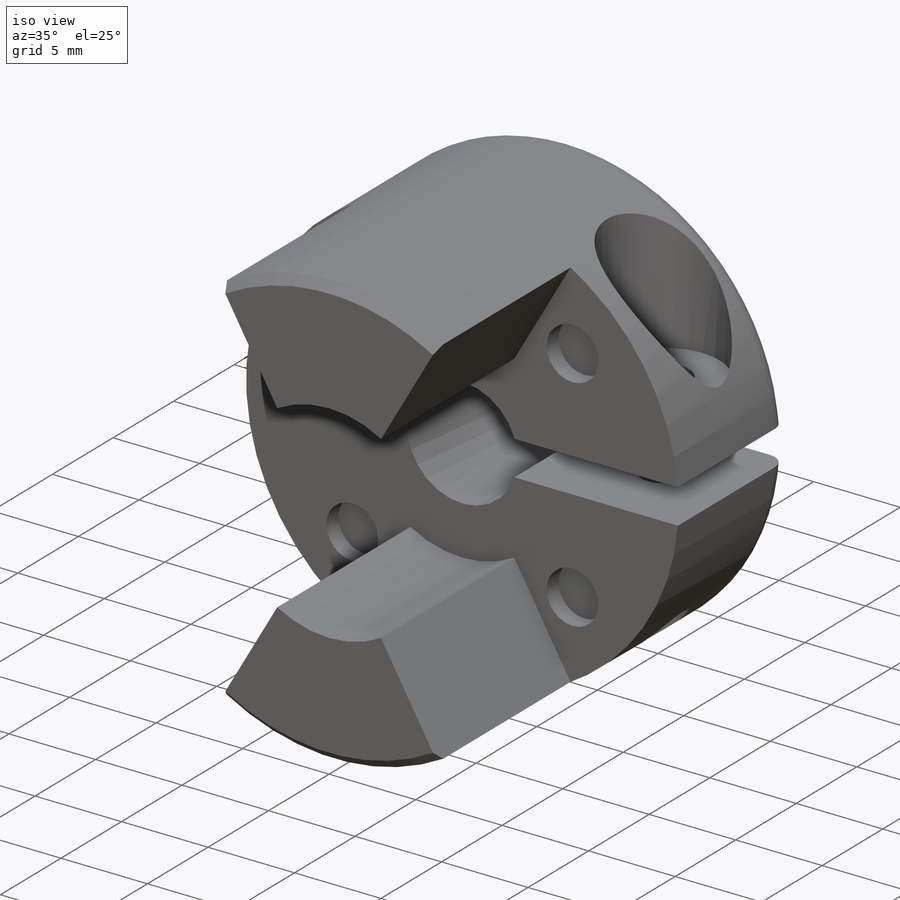
[diagram: iso view]
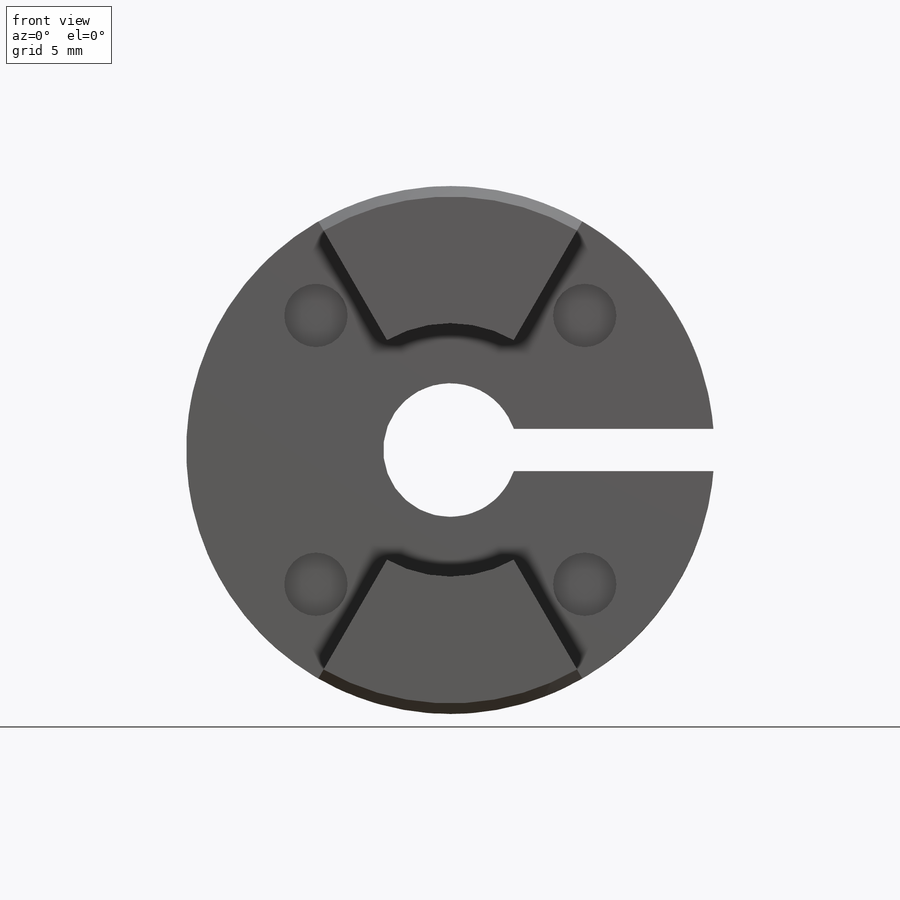
[diagram: front view]
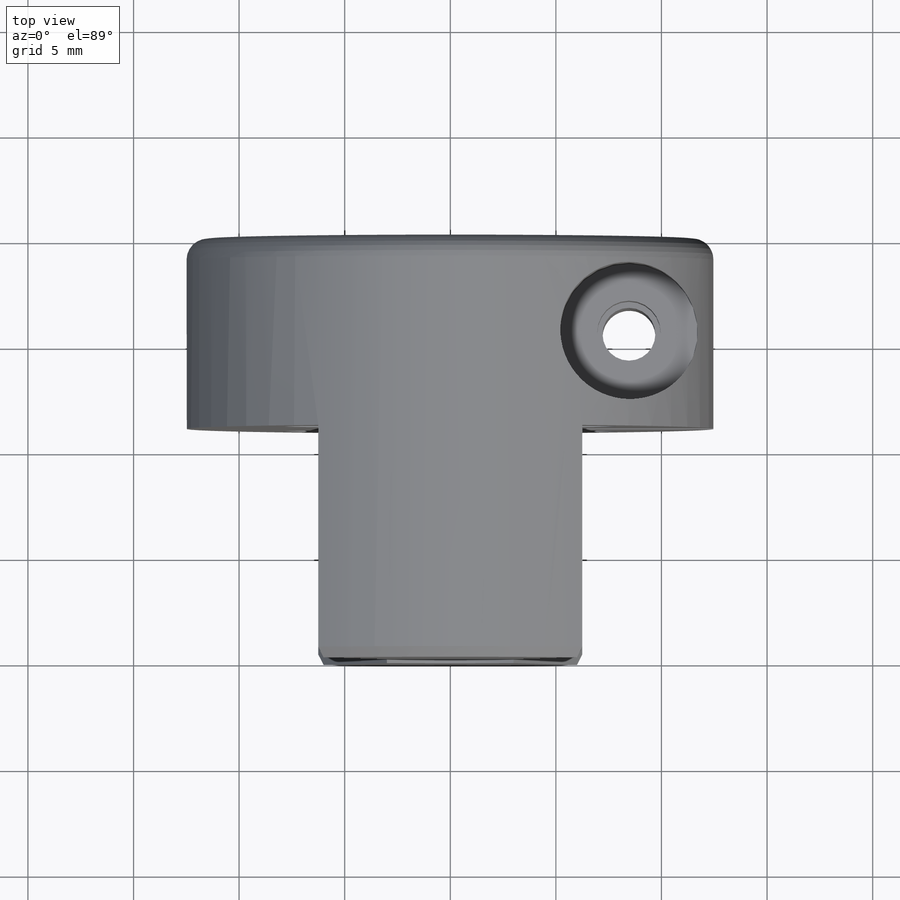
[diagram: top view]
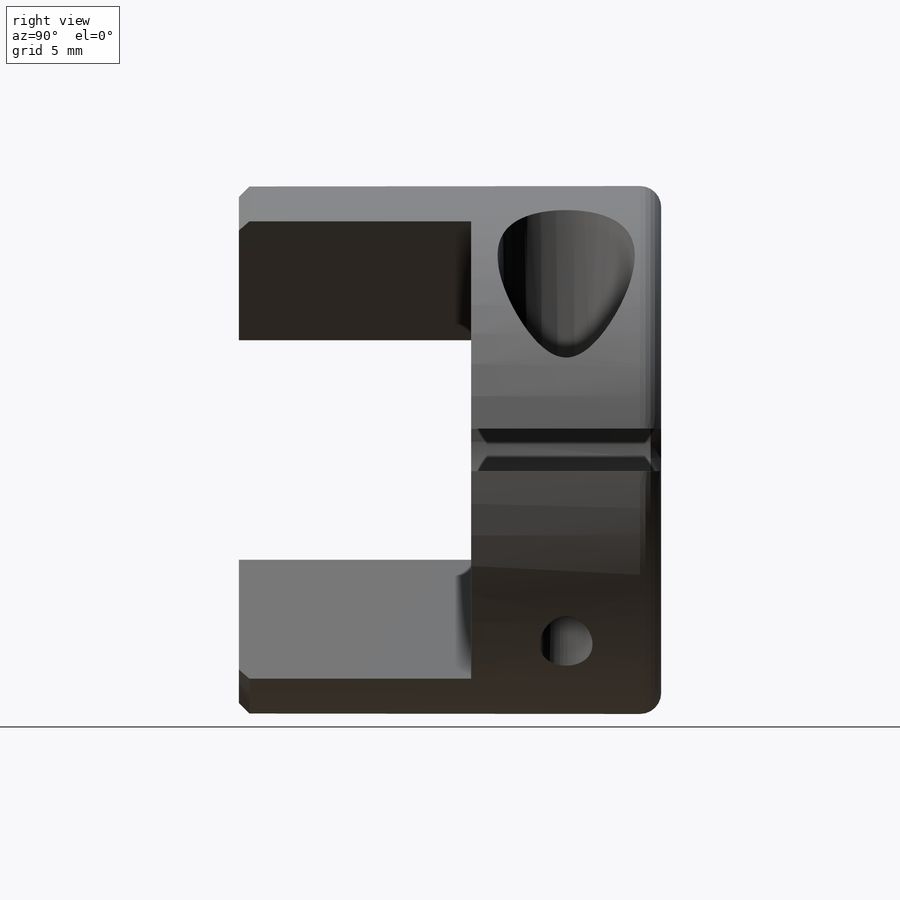
[diagram: right view]
SOLIDWORKS PART (.sldprt)
format: sldprt  version: not decoded by parser v0  size: 364,032 bytes
history: native  units: mm
features: sketch x10, cut_extrude x7, plane x3, material x1, extrude x1, mirror x1, hole x1, thread x1, fillet x1, chamfer x1, pattern_circular x1 (+9 scaffold rows collapsed)
feature tree (37):
  scaffold x9  (default folders/planes/origin — collapsed)
  material  "Liga 6061"
  plane  "Plano frontal"
  plane  "Plano superior"
  plane  "Plano direito"
  sketch  "Esboço1"  dims[D1=25.0mm]
  extrude  "Ressalto-extrusão1"  Depth=20mm
  sketch  "Esboço2"  dims[c1.D4=2.0mm c1.D5=22.0mm c1.D6=2.0mm c1.D1=~16.323264mm c2.D1=120.0deg c2.D2=~21.376062mm c3.D2=60.0deg c3.D3=~16.323264mm c4.D3=120.0deg c4.D4=14.4794mm c5.D4=60.0deg c6.D4=~16.323264mm c7.D4=60.0deg c7.D1=~26.119925mm c8.D1=120.0deg c8.D2=~34.953587mm c9.D2=60.0deg c9.D3=~30.836519mm c10.D3=120.0deg c10.D4=45.0mm c10.D6=~19.033423mm c11.D6=60.0deg c11.D5=12.5mm c12.D5=30.0deg c12.D6=~9.114651mm c13.D6=60.0deg c13.D1=~7.383022mm c14.D1=~100.264449deg c15.D1=~9.386832mm c16.D1=120.0deg c16.D2=12.5mm c17.D2=30.0deg]
  cut_extrude  "Corte-extrusão3"  Depth=11mm
  sketch  "Esboço3"  dims[D1=6.35mm]
  cut_extrude  "Corte-extrusão4"  [1 undecoded]
  mirror  "Espelhar1"
  sketch  "Esboço6"  dims[D1=2.0mm D2=12.0mm D3=7.0mm]
  cut_extrude  "Corte-extrusão5"  [1 undecoded]
  sketch  "Esboço7"  dims[D1=6.5mm D2=4.0mm]
  cut_extrude  "Corte-extrusão6"  Depth=3mm
  hole  "Furo roscado de M3x0.51"  Diameter=2.5mm Depth=16.5mm
  sketch  "Esboço9"
  sketch  "Esboço8"  dims[hole-wizard template sketch: 60 standard entries collapsed; hole parameters kept: c18.Thru Tap Drill Depth=16.5mm]
  thread  "Rosca de furo2"  Diameter=3mm  [1 undecoded]
  fillet  "Filete1"  Radius=1mm
  sketch  "Esboço10"  dims[c1.D1=3.0mm c1.D2=9.0mm c1.D3=9.0mm c2.D3=45.0deg c2.D4=~6.15765mm c3.D4=120.0deg c3.D5=~7.794229mm c4.D5=60.0deg]
  cut_extrude  "Corte-extrusão7"  Depth=1mm
  chamfer  "Chanfro1"  Distance=0.5mm Angle=45deg
  sketch  "Esboço11"  dims[D1=3.0mm]
  cut_extrude  "Corte-extrusão8"  [1 undecoded]
  sketch  "Esboço12"  dims[D1=12.0mm]
  cut_extrude  "Corte-extrusão9"  [1 undecoded]
  pattern_circular  "PadrãoCircular1"  Count=4 Angle=360deg
decode coverage: 18 of 24 modeling features carry decoded parameters
note: ~ marks probable driven/reference dimensions
note: 5 parameter values undecoded
summary: no parameter record found for 4 features
note: suppression state not decoded; provenance and decode notes live in map.json
